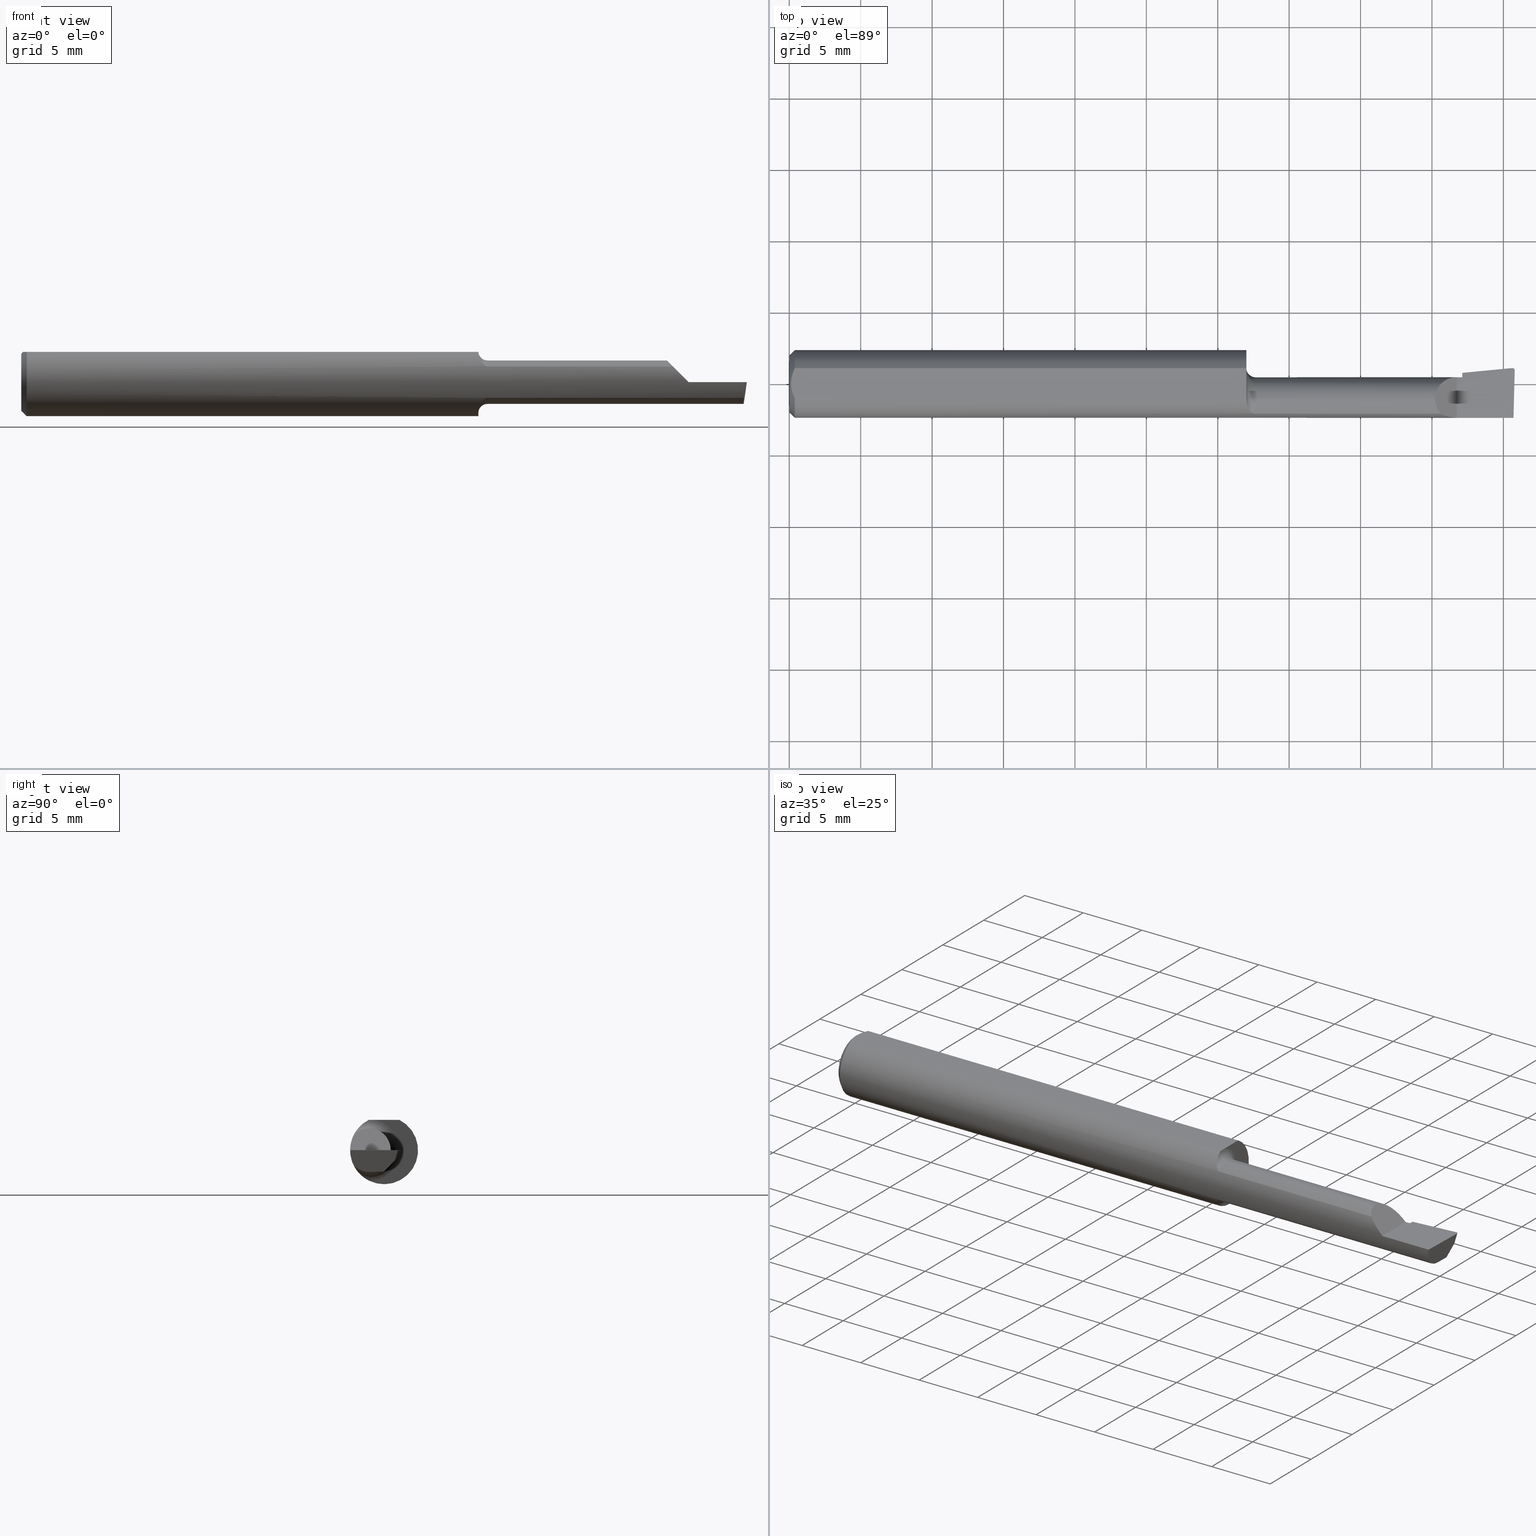
[diagram: canonical four-view strip — front | top / right | iso, engineering-drawing reading convention]
A machine part, canonical four-view strip (front | top / right | iso — engineering-drawing reading convention). The complete STEP part file that produces these views, byte-faithful:
ISO-10303-21;
HEADER;
FILE_DESCRIPTION (( 'STEP AP214' ),
    '1' );
FILE_NAME ('B140700R.STEP',
    '2020-05-08T22:41:05',
    ( '' ),
    ( '' ),
    'SwSTEP 2.0',
    'SolidWorks 2018',
    '' );
FILE_SCHEMA (( 'AUTOMOTIVE_DESIGN' ));
ENDSEC;

DATA;
#1 = FACE_OUTER_BOUND ( 'NONE', #539, .T. ) ;
#2 = ADVANCED_FACE ( 'NONE', ( #37 ), #472, .F. ) ;
#3 = PRODUCT_DEFINITION_SHAPE ( 'NONE', 'NONE',  #544 ) ;
#4 = PLANE ( 'NONE',  #473 ) ;
#5 = VERTEX_POINT ( 'NONE', #66 ) ;
#6 = CARTESIAN_POINT ( 'NONE',  ( 1.990393312970557327, -0.04150000000000000216, -0.05990000000000000185 ) ) ;
#7 = ADVANCED_FACE ( 'NONE', ( #666 ), #100, .F. ) ;
#8 = DIRECTION ( 'NONE',  ( -1.000000000000000000, -0.0000000000000000000, -0.0000000000000000000 ) ) ;
#9 = EDGE_CURVE ( 'NONE', #399, #62, #520, .T. ) ;
#10 = LINE ( 'NONE', #238, #527 ) ;
#11 = CARTESIAN_POINT ( 'NONE',  ( 1.854999999999999982, 0.03043808801135922115, 1.030335937757294514E-15 ) ) ;
#12 = CIRCLE ( 'NONE', #97, 0.07859999999999965625 ) ;
#13 = EDGE_CURVE ( 'NONE', #111, #15, #19, .T. ) ;
#14 = CYLINDRICAL_SURFACE ( 'NONE', #185, 0.09360000000000001652 ) ;
#15 = VERTEX_POINT ( 'NONE', #342 ) ;
#16 = DIRECTION ( 'NONE',  ( -1.000000000000000000, -0.0000000000000000000, -0.0000000000000000000 ) ) ;
#17 = VERTEX_POINT ( 'NONE', #364 ) ;
#18 = DIRECTION ( 'NONE',  ( -1.000000000000000000, -0.0000000000000000000, -0.0000000000000000000 ) ) ;
#19 =( BOUNDED_CURVE ( )  B_SPLINE_CURVE ( 3, ( #313, #507, #203, #131 ),
 .UNSPECIFIED., .F., .T. ) 
 B_SPLINE_CURVE_WITH_KNOTS ( ( 4, 4 ),
 ( 0.8819507499627846636, 1.360746882514781042 ),
 .UNSPECIFIED. ) 
 CURVE ( )  GEOMETRIC_REPRESENTATION_ITEM ( )  RATIONAL_B_SPLINE_CURVE ( ( 1.000000000000000000, 0.9809872534005956712, 0.9809872534005956712, 1.000000000000000000 ) ) 
 REPRESENTATION_ITEM ( '' )  );
#20 = CARTESIAN_POINT ( 'NONE',  ( 1.989982066092358393, -0.05720488466914004644, -0.05989999999999997410 ) ) ;
#21 = ADVANCED_FACE ( 'NONE', ( #142 ), #251, .T. ) ;
#22 = EDGE_LOOP ( 'NONE', ( #84, #262, #147, #125, #519 ) ) ;
#23 = DIRECTION ( 'NONE',  ( 0.0000000000000000000, 1.000000000000000000, 0.0000000000000000000 ) ) ;
#24 = DIRECTION ( 'NONE',  ( -0.02617694830786378504, -0.9996573249755575929, 0.0000000000000000000 ) ) ;
#25 = ORIENTED_EDGE ( 'NONE', *, *, #53, .F. ) ;
#26 = CARTESIAN_POINT ( 'NONE',  ( 1.284999999999999920, -0.04150000000000000216, 0.05989999999999993940 ) ) ;
#27 = CARTESIAN_POINT ( 'NONE',  ( 2.000000000000000000, -0.04150000000000000216, -0.05990000000000000185 ) ) ;
#28 = CARTESIAN_POINT ( 'NONE',  ( 1.854999999999999982, -0.2500000000000000555, 1.135460985248596835E-17 ) ) ;
#29 = MANIFOLD_SOLID_BREP ( '3D38131D-C0BB-4e64-95DB-B8367B4224A6-GAAFaceID14', #659 ) ;
#30 = EDGE_CURVE ( 'NONE', #683, #219, #228, .T. ) ;
#31 = CARTESIAN_POINT ( 'NONE',  ( 0.0000000000000000000, 0.0000000000000000000, 0.0000000000000000000 ) ) ;
#32 =( NAMED_UNIT ( * ) PLANE_ANGLE_UNIT ( ) SI_UNIT ( $, .RADIAN. ) );
#33 = CARTESIAN_POINT ( 'NONE',  ( 1.260121283746728604, -0.04659318327468391085, -0.08137765652544191874 ) ) ;
#34 = CARTESIAN_POINT ( 'NONE',  ( 1.569999999999999840, -0.08307469879518077083, -0.04312255117789288994 ) ) ;
#35 = CARTESIAN_POINT ( 'NONE',  ( 1.260006719116742557, -0.04082489400077272956, -0.08423096411932437522 ) ) ;
#36 = ORIENTED_EDGE ( 'NONE', *, *, #483, .F. ) ;
#37 = FACE_OUTER_BOUND ( 'NONE', #656, .T. ) ;
#38 = VERTEX_POINT ( 'NONE', #11 ) ;
#39 = CARTESIAN_POINT ( 'NONE',  ( 1.854999999999999982, 0.03043808801135671968, 0.0000000000000000000 ) ) ;
#40 = CARTESIAN_POINT ( 'NONE',  ( 1.260000000000000009, -0.04014498638740782166, -0.08455714216888012003 ) ) ;
#41 = DIRECTION ( 'NONE',  ( -0.7071067811865516806, 0.0000000000000000000, 0.7071067811865433539 ) ) ;
#42 = VECTOR ( 'NONE', #718, 39.37007874015748854 ) ;
#43 = EDGE_CURVE ( 'NONE', #667, #683, #132, .T. ) ;
#44 = EDGE_CURVE ( 'NONE', #219, #357, #140, .T. ) ;
#45 = DIRECTION ( 'NONE',  ( -1.000000000000000000, 0.0000000000000000000, -0.0000000000000000000 ) ) ;
#46 = VECTOR ( 'NONE', #204, 39.37007874015748143 ) ;
#47 = VERTEX_POINT ( 'NONE', #429 ) ;
#48 = EDGE_CURVE ( 'NONE', #412, #550, #568, .T. ) ;
#49 = AXIS2_PLACEMENT_3D ( 'NONE', #110, #113, #107 ) ;
#50 = ORIENTED_EDGE ( 'NONE', *, *, #287, .F. ) ;
#51 = CARTESIAN_POINT ( 'NONE',  ( 1.845713589253087594, 0.02954390835936741844, -6.829619984160658046E-17 ) ) ;
#52 = ORIENTED_EDGE ( 'NONE', *, *, #158, .T. ) ;
#53 = EDGE_CURVE ( 'NONE', #399, #38, #121, .T. ) ;
#54 = EDGE_LOOP ( 'NONE', ( #267, #331, #555, #52, #85 ) ) ;
#55 = EDGE_CURVE ( 'NONE', #697, #712, #12, .T. ) ;
#56 = CARTESIAN_POINT ( 'NONE',  ( 0.01499999999999999598, 1.146269404001922775E-17, 0.09360000000000001652 ) ) ;
#57 = ADVANCED_FACE ( 'NONE', ( #160 ), #570, .F. ) ;
#58 = VECTOR ( 'NONE', #719, 39.37007874015748143 ) ;
#59 = FACE_OUTER_BOUND ( 'NONE', #690, .T. ) ;
#60 = DIRECTION ( 'NONE',  ( -1.000000000000000000, -0.0000000000000000000, -0.0000000000000000000 ) ) ;
#61 = AXIS2_PLACEMENT_3D ( 'NONE', #406, #414, #522 ) ;
#62 = VERTEX_POINT ( 'NONE', #74 ) ;
#63 = DIRECTION ( 'NONE',  ( -1.000000000000000000, -0.0000000000000000000, -0.0000000000000000000 ) ) ;
#64 = EDGE_LOOP ( 'NONE', ( #154, #384, #181, #543 ) ) ;
#65 = CARTESIAN_POINT ( 'NONE',  ( 1.260000000000000009, -0.03946024096385555846, -0.08487549341873928954 ) ) ;
#66 = CARTESIAN_POINT ( 'NONE',  ( 1.999806390372779408, 0.03700634663142107761, -6.825079363098308080E-17 ) ) ;
#67 = LENGTH_MEASURE_WITH_UNIT ( LENGTH_MEASURE( 0.02539999999999999897 ), #270 );
#68 = ADVANCED_FACE ( 'NONE', ( #437 ), #689, .T. ) ;
#69 = CARTESIAN_POINT ( 'NONE',  ( 0.0000000000000000000, -0.04149999999999999523, -0.05989999999999997410 ) ) ;
#70 =( BOUNDED_CURVE ( )  B_SPLINE_CURVE ( 3, ( #669, #231, #20, #6 ),
 .UNSPECIFIED., .F., .T. ) 
 B_SPLINE_CURVE_WITH_KNOTS ( ( 4, 4 ),
 ( 5.726109673675772171, 6.493234751459700860 ),
 .UNSPECIFIED. ) 
 CURVE ( )  GEOMETRIC_REPRESENTATION_ITEM ( )  RATIONAL_B_SPLINE_CURVE ( ( 1.000000000000000000, 0.9515582177473689285, 0.9515582177473689285, 1.000000000000000000 ) ) 
 REPRESENTATION_ITEM ( '' )  );
#71 = DIRECTION ( 'NONE',  ( 0.0000000000000000000, -1.189000693621284344E-16, -1.000000000000000000 ) ) ;
#72 = EDGE_LOOP ( 'NONE', ( #489, #650, #615, #410 ) ) ;
#73 = ORIENTED_EDGE ( 'NONE', *, *, #670, .T. ) ;
#74 = CARTESIAN_POINT ( 'NONE',  ( 1.854999999999999982, -0.04150000000000000216, -0.05990000000000000185 ) ) ;
#75 = ORIENTED_EDGE ( 'NONE', *, *, #206, .F. ) ;
#76 = ORIENTED_EDGE ( 'NONE', *, *, #9, .F. ) ;
#77 = DIRECTION ( 'NONE',  ( 0.0000000000000000000, 0.0000000000000000000, -1.000000000000000000 ) ) ;
#78 = ADVANCED_FACE ( 'NONE', ( #517 ), #538, .T. ) ;
#79 = DIRECTION ( 'NONE',  ( -1.000000000000000000, -0.0000000000000000000, -0.0000000000000000000 ) ) ;
#80 =( NAMED_UNIT ( * ) SI_UNIT ( $, .STERADIAN. ) SOLID_ANGLE_UNIT ( ) );
#81 = CARTESIAN_POINT ( 'NONE',  ( 0.0000000000000000000, 0.0000000000000000000, 0.0000000000000000000 ) ) ;
#82 = LINE ( 'NONE', #265, #330 ) ;
#83 = EDGE_CURVE ( 'NONE', #219, #5, #170, .T. ) ;
#84 = ORIENTED_EDGE ( 'NONE', *, *, #532, .F. ) ;
#85 = ORIENTED_EDGE ( 'NONE', *, *, #727, .T. ) ;
#86 = CARTESIAN_POINT ( 'NONE',  ( 0.01499999999999999598, 0.0000000000000000000, 0.0000000000000000000 ) ) ;
#87 = CARTESIAN_POINT ( 'NONE',  ( 2.000000000000000000, -0.2500000000000000555, -6.829619984160658046E-17 ) ) ;
#88 = EDGE_CURVE ( 'NONE', #550, #38, #611, .T. ) ;
#89 =( LENGTH_UNIT ( ) NAMED_UNIT ( * ) SI_UNIT ( $, .METRE. ) );
#90 = DIRECTION ( 'NONE',  ( -0.7071067811865433539, 0.0000000000000000000, -0.7071067811865516806 ) ) ;
#91 = DIRECTION ( 'NONE',  ( 0.7071067811865391350, 0.0000000000000000000, -0.7071067811865558994 ) ) ;
#92 = DIRECTION ( 'NONE',  ( 0.06894566448119619773, -0.7160281025913034503, 0.6946583704589934793 ) ) ;
#93 = AXIS2_PLACEMENT_3D ( 'NONE', #39, #45, #435 ) ;
#94 = CARTESIAN_POINT ( 'NONE',  ( 0.009539353699420832430, -0.02875682547511371895, 0.08360000000000000764 ) ) ;
#95 = EDGE_LOOP ( 'NONE', ( #631, #499, #143, #73, #709, #354, #351, #378, #187, #657, #216, #164, #308 ) ) ;
#96 = VERTEX_POINT ( 'NONE', #257 ) ;
#97 = AXIS2_PLACEMENT_3D ( 'NONE', #636, #63, #586 ) ;
#98 = CARTESIAN_POINT ( 'NONE',  ( 1.988104162047463319, -0.07253870183878463607, -0.07191998023054105293 ) ) ;
#99 = CARTESIAN_POINT ( 'NONE',  ( 1.824917075065774830, -0.09360000000000001652, 0.01508292493422499526 ) ) ;
#100 = PLANE ( 'NONE',  #665 ) ;
#101 = EDGE_CURVE ( 'NONE', #623, #433, #225, .T. ) ;
#102 = CARTESIAN_POINT ( 'NONE',  ( 1.260033822879743859, -0.04150000000000000216, 0.08360000000000000764 ) ) ;
#103 = CARTESIAN_POINT ( 'NONE',  ( 1.260000000000000009, 0.04339999999999993863, 0.0000000000000000000 ) ) ;
#104 = LINE ( 'NONE', #338, #390 ) ;
#105 = AXIS2_PLACEMENT_3D ( 'NONE', #51, #608, #612 ) ;
#106 = CARTESIAN_POINT ( 'NONE',  ( 0.0000000000000000000, -0.04150000000000000216, 0.0000000000000000000 ) ) ;
#107 = DIRECTION ( 'NONE',  ( 0.0000000000000000000, 0.0000000000000000000, -1.000000000000000000 ) ) ;
#108 = LINE ( 'NONE', #27, #695 ) ;
#109 = ORIENTED_EDGE ( 'NONE', *, *, #236, .T. ) ;
#110 = CARTESIAN_POINT ( 'NONE',  ( 1.284999999999999920, -0.04150000000000000216, 0.08489999999999994773 ) ) ;
#111 = VERTEX_POINT ( 'NONE', #591 ) ;
#112 = EDGE_CURVE ( 'NONE', #641, #667, #391, .T. ) ;
#113 = DIRECTION ( 'NONE',  ( 0.0000000000000000000, -1.000000000000000000, 0.0000000000000000000 ) ) ;
#114 = ORIENTED_EDGE ( 'NONE', *, *, #447, .F. ) ;
#115 = CARTESIAN_POINT ( 'NONE',  ( 0.0000000000000000000, -0.04150000000000000216, 0.0000000000000000000 ) ) ;
#116 = DIRECTION ( 'NONE',  ( 0.0000000000000000000, 0.0000000000000000000, 1.000000000000000000 ) ) ;
#117 = ADVANCED_FACE ( 'NONE', ( #1 ), #451, .F. ) ;
#118 = ORIENTED_EDGE ( 'NONE', *, *, #137, .T. ) ;
#119 = CARTESIAN_POINT ( 'NONE',  ( 1.260033822879743415, -0.04159918775988085543, 0.08360000000000000764 ) ) ;
#120 = AXIS2_PLACEMENT_3D ( 'NONE', #86, #205, #421 ) ;
#121 = LINE ( 'NONE', #28, #422 ) ;
#122 = ORIENTED_EDGE ( 'NONE', *, *, #658, .T. ) ;
#123 = ADVANCED_FACE ( 'NONE', ( #59 ), #274, .F. ) ;
#124 = CARTESIAN_POINT ( 'NONE',  ( 1.991446623798936333, -0.001275682303322550441, -0.05990000000000000185 ) ) ;
#125 = ORIENTED_EDGE ( 'NONE', *, *, #101, .T. ) ;
#126 = FACE_OUTER_BOUND ( 'NONE', #463, .T. ) ;
#127 = EDGE_CURVE ( 'NONE', #62, #412, #82, .T. ) ;
#128 = CARTESIAN_POINT ( 'NONE',  ( 1.990393312970557327, -0.04150000000000000216, -0.05990000000000000185 ) ) ;
#129 = DIRECTION ( 'NONE',  ( 0.1240019227989197920, 0.3022330132596642849, 0.9451342385281331637 ) ) ;
#130 = DIRECTION ( 'NONE',  ( -1.000000000000000000, -0.0000000000000000000, -0.0000000000000000000 ) ) ;
#131 = CARTESIAN_POINT ( 'NONE',  ( 1.996386342823452065, -0.09360000000000009979, -6.634435288474567089E-17 ) ) ;
#132 =( BOUNDED_CURVE ( )  B_SPLINE_CURVE ( 3, ( #302, #243, #153, #404 ),
 .UNSPECIFIED., .F., .F. ) 
 B_SPLINE_CURVE_WITH_KNOTS ( ( 4, 4 ),
 ( 3.064097098354582105, 3.156599629463105128 ),
 .UNSPECIFIED. ) 
 CURVE ( )  GEOMETRIC_REPRESENTATION_ITEM ( )  RATIONAL_B_SPLINE_CURVE ( ( 1.000000000000000000, 0.9992870672494019724, 0.9992870672494019724, 1.000000000000000000 ) ) 
 REPRESENTATION_ITEM ( '' )  );
#133 = CARTESIAN_POINT ( 'NONE',  ( 1.269277238843646405, -0.07518688180277831312, 0.05595855205935828386 ) ) ;
#134 = CARTESIAN_POINT ( 'NONE',  ( 1.260020127471513041, -0.04150000000000001604, -0.08389702020930184245 ) ) ;
#135 = AXIS2_PLACEMENT_3D ( 'NONE', #529, #18, #638 ) ;
#136 = CARTESIAN_POINT ( 'NONE',  ( 1.854999999999999982, -0.04150000000000000216, 0.0000000000000000000 ) ) ;
#137 = EDGE_CURVE ( 'NONE', #275, #200, #458, .T. ) ;
#138 = LINE ( 'NONE', #533, #575 ) ;
#139 = VERTEX_POINT ( 'NONE', #261 ) ;
#140 = LINE ( 'NONE', #304, #605 ) ;
#141 = CARTESIAN_POINT ( 'NONE',  ( 1.260033822879743859, -0.04150000000000000216, 0.08360000000000000764 ) ) ;
#142 = FACE_OUTER_BOUND ( 'NONE', #284, .T. ) ;
#143 = ORIENTED_EDGE ( 'NONE', *, *, #178, .T. ) ;
#144 = CARTESIAN_POINT ( 'NONE',  ( 0.0000000000000000000, 0.0000000000000000000, 0.0000000000000000000 ) ) ;
#145 = SURFACE_SIDE_STYLE ('',( #649 ) ) ;
#146 = AXIS2_PLACEMENT_3D ( 'NONE', #571, #60, #561 ) ;
#147 = ORIENTED_EDGE ( 'NONE', *, *, #155, .T. ) ;
#148 =( BOUNDED_CURVE ( )  B_SPLINE_CURVE ( 3, ( #485, #99, #589, #278 ),
 .UNSPECIFIED., .F., .T. ) 
 B_SPLINE_CURVE_WITH_KNOTS ( ( 4, 4 ),
 ( 4.712388980384689674, 5.191185112936686608 ),
 .UNSPECIFIED. ) 
 CURVE ( )  GEOMETRIC_REPRESENTATION_ITEM ( )  RATIONAL_B_SPLINE_CURVE ( ( 1.000000000000000000, 0.9809872534005956712, 0.9809872534005956712, 1.000000000000000000 ) ) 
 REPRESENTATION_ITEM ( '' )  );
#149 = CARTESIAN_POINT ( 'NONE',  ( 1.780099999999999349, -0.04150000000000000216, 0.05989999999999997410 ) ) ;
#150 = EDGE_CURVE ( 'NONE', #285, #356, #479, .T. ) ;
#151 = CARTESIAN_POINT ( 'NONE',  ( 5.659797890829555466E-31, 0.01839999999999995806, 1.030335658007946046E-15 ) ) ;
#152 = CARTESIAN_POINT ( 'NONE',  ( 1.284999999999999920, -0.04149999999999999523, -0.08489999999999994773 ) ) ;
#153 = CARTESIAN_POINT ( 'NONE',  ( 1.990684883739910260, 0.03734591258203676101, -0.02001468779820764210 ) ) ;
#154 = ORIENTED_EDGE ( 'NONE', *, *, #244, .T. ) ;
#155 = EDGE_CURVE ( 'NONE', #17, #623, #295, .T. ) ;
#156 = DIRECTION ( 'NONE',  ( 1.000000000000000000, 0.0000000000000000000, 0.0000000000000000000 ) ) ;
#157 = DIRECTION ( 'NONE',  ( -5.493159289247764363E-16, 0.0000000000000000000, -1.000000000000000000 ) ) ;
#158 = EDGE_CURVE ( 'NONE', #433, #673, #179, .T. ) ;
#159 = CARTESIAN_POINT ( 'NONE',  ( 0.01499999999999999944, -0.04209513035969835587, 0.08360000000000000764 ) ) ;
#160 = FACE_OUTER_BOUND ( 'NONE', #513, .T. ) ;
#161 = EDGE_CURVE ( 'NONE', #285, #482, #280, .T. ) ;
#162 = LINE ( 'NONE', #201, #408 ) ;
#163 = PRODUCT_DEFINITION_CONTEXT ( 'detailed design', #246, 'design' ) ;
#164 = ORIENTED_EDGE ( 'NONE', *, *, #161, .F. ) ;
#165 = AXIS2_PLACEMENT_3D ( 'NONE', #316, #315, #303 ) ;
#166 = EDGE_LOOP ( 'NONE', ( #401, #559, #443 ) ) ;
#167 = DIRECTION ( 'NONE',  ( 1.000000000000000000, 0.0000000000000000000, 0.0000000000000000000 ) ) ;
#168 = EDGE_CURVE ( 'NONE', #588, #616, #528, .T. ) ;
#169 = DIRECTION ( 'NONE',  ( 0.0000000000000000000, 0.0000000000000000000, -1.000000000000000000 ) ) ;
#170 = LINE ( 'NONE', #701, #597 ) ;
#171 = B_SPLINE_CURVE_WITH_KNOTS ( 'NONE', 3,
 ( #546, #269, #531, #476, #474, #703, #469, #432, #471, #428, #33, #708 ),
 .UNSPECIFIED., .F., .F.,
 ( 4, 2, 2, 2, 2, 4 ),
 ( 1.963546462201886498E-07, 0.0002171101490734174422, 0.0004340239435006147282, 0.0008678515323550088124, 0.001301679121209403005, 0.001735506710063797415 ),
 .UNSPECIFIED. ) ;
#172 = ORIENTED_EDGE ( 'NONE', *, *, #55, .T. ) ;
#173 =( GEOMETRIC_REPRESENTATION_CONTEXT ( 3 ) GLOBAL_UNCERTAINTY_ASSIGNED_CONTEXT ( ( #596 ) ) GLOBAL_UNIT_ASSIGNED_CONTEXT ( ( #190, #32, #548 ) ) REPRESENTATION_CONTEXT ( 'NONE', 'WORKASPACE' ) );
#174 = PRESENTATION_LAYER_ASSIGNMENT (  '', '', ( #702 ) ) ;
#175 =( NAMED_UNIT ( * ) PLANE_ANGLE_UNIT ( ) SI_UNIT ( $, .RADIAN. ) );
#176 = ADVANCED_FACE ( 'NONE', ( #707 ), #365, .F. ) ;
#177 = CARTESIAN_POINT ( 'NONE',  ( 1.273723886093772295, -0.07921817987516426018, 0.04991299092638452894 ) ) ;
#178 = EDGE_CURVE ( 'NONE', #15, #240, #688, .T. ) ;
#179 = CIRCLE ( 'NONE', #120, 0.09360000000000001652 ) ;
#180 = FACE_OUTER_BOUND ( 'NONE', #423, .T. ) ;
#181 = ORIENTED_EDGE ( 'NONE', *, *, #193, .T. ) ;
#182 = DIRECTION ( 'NONE',  ( 1.000000000000000000, 0.0000000000000000000, 0.0000000000000000000 ) ) ;
#183 = CARTESIAN_POINT ( 'NONE',  ( 1.260033749376514578, -0.04199594133480308300, 0.08360000000000003539 ) ) ;
#184 = SURFACE_STYLE_USAGE ( .BOTH. , #145 ) ;
#185 = AXIS2_PLACEMENT_3D ( 'NONE', #144, #386, #448 ) ;
#186 = CARTESIAN_POINT ( 'NONE',  ( 1.260661035553280129, -0.05185656404764085042, 0.07811662714540888730 ) ) ;
#187 = ORIENTED_EDGE ( 'NONE', *, *, #101, .F. ) ;
#188 = ORIENTED_EDGE ( 'NONE', *, *, #264, .F. ) ;
#189 = EDGE_CURVE ( 'NONE', #697, #433, #334, .T. ) ;
#190 =( CONVERSION_BASED_UNIT ( 'INCH', #660 ) LENGTH_UNIT ( ) NAMED_UNIT ( #634 ) );
#191 = EDGE_CURVE ( 'NONE', #200, #681, #221, .T. ) ;
#192 = CARTESIAN_POINT ( 'NONE',  ( 1.260000000000000009, -0.04150000000000000216, 0.0000000000000000000 ) ) ;
#193 = EDGE_CURVE ( 'NONE', #409, #62, #108, .T. ) ;
#194 = CARTESIAN_POINT ( 'NONE',  ( 2.000000000000000000, 0.1436000000000000332, 0.08359999999999999376 ) ) ;
#195 = CARTESIAN_POINT ( 'NONE',  ( 1.996607907276939153, 0.03291612433050061098, -0.02516861643763549858 ) ) ;
#196 = VECTOR ( 'NONE', #293, 39.37007874015748143 ) ;
#197 = ORIENTED_EDGE ( 'NONE', *, *, #727, .F. ) ;
#198 = LENGTH_MEASURE_WITH_UNIT ( LENGTH_MEASURE( 0.02539999999999999897 ), #89 );
#199 = DIRECTION ( 'NONE',  ( -1.000000000000000000, -0.0000000000000000000, -0.0000000000000000000 ) ) ;
#200 = VERTEX_POINT ( 'NONE', #654 ) ;
#201 = CARTESIAN_POINT ( 'NONE',  ( 0.0000000000000000000, -0.04150000000000000216, 0.05989999999999997410 ) ) ;
#202 = AXIS2_PLACEMENT_3D ( 'NONE', #241, #247, #254 ) ;
#203 = CARTESIAN_POINT ( 'NONE',  ( 1.994533757673610408, -0.09360000000000001652, -0.01508292493422509067 ) ) ;
#204 = DIRECTION ( 'NONE',  ( -0.0000000000000000000, 1.000000000000000000, -0.0000000000000000000 ) ) ;
#205 = DIRECTION ( 'NONE',  ( -1.000000000000000000, -0.0000000000000000000, -0.0000000000000000000 ) ) ;
#206 = EDGE_CURVE ( 'NONE', #38, #641, #396, .T. ) ;
#207 = EDGE_CURVE ( 'NONE', #139, #285, #171, .T. ) ;
#208 = CARTESIAN_POINT ( 'NONE',  ( 5.659797890829555466E-31, -0.09359999999999998876, 1.030335658007946046E-15 ) ) ;
#209 = DIRECTION ( 'NONE',  ( -1.000000000000000000, -0.0000000000000000000, -0.0000000000000000000 ) ) ;
#210 = CARTESIAN_POINT ( 'NONE',  ( 1.785977184218891400, -0.07176861043311237587, 0.05402281578110738197 ) ) ;
#211 = ORIENTED_EDGE ( 'NONE', *, *, #112, .F. ) ;
#212 = AXIS2_PLACEMENT_3D ( 'NONE', #598, #90, #41 ) ;
#213 = CARTESIAN_POINT ( 'NONE',  ( 0.005000000000000223883, 0.007308422719211823959, 0.08360000000000000764 ) ) ;
#214 = MECHANICAL_DESIGN_GEOMETRIC_PRESENTATION_REPRESENTATION (  '', ( #702 ), #255 ) ;
#215 = CARTESIAN_POINT ( 'NONE',  ( 0.01499999999999999598, 0.0000000000000000000, -0.09360000000000001652 ) ) ;
#216 = ORIENTED_EDGE ( 'NONE', *, *, #326, .F. ) ;
#217 = ORIENTED_EDGE ( 'NONE', *, *, #339, .F. ) ;
#218 = EDGE_CURVE ( 'NONE', #47, #683, #138, .T. ) ;
#219 = VERTEX_POINT ( 'NONE', #556 ) ;
#220 = DIRECTION ( 'NONE',  ( 0.0000000000000000000, 0.0000000000000000000, 1.000000000000000000 ) ) ;
#221 =( BOUNDED_CURVE ( )  B_SPLINE_CURVE ( 3, ( #355, #700, #651, #646 ),
 .UNSPECIFIED., .F., .T. ) 
 B_SPLINE_CURVE_WITH_KNOTS ( ( 4, 4 ),
 ( 0.0000000000000000000, 1.570796326794896558 ),
 .UNSPECIFIED. ) 
 CURVE ( )  GEOMETRIC_REPRESENTATION_ITEM ( )  RATIONAL_B_SPLINE_CURVE ( ( 1.000000000000000000, 0.8047378541243649375, 0.8047378541243649375, 1.000000000000000000 ) ) 
 REPRESENTATION_ITEM ( '' )  );
#222 = LINE ( 'NONE', #566, #416 ) ;
#223 = VECTOR ( 'NONE', #260, 39.37007874015748143 ) ;
#224 = APPLICATION_PROTOCOL_DEFINITION ( 'draft international standard', 'automotive_design', 1998, #246 ) ;
#225 = CIRCLE ( 'NONE', #457, 0.09360000000000001652 ) ;
#226 = AXIS2_PLACEMENT_3D ( 'NONE', #115, #16, #327 ) ;
#227 = ORIENTED_EDGE ( 'NONE', *, *, #88, .F. ) ;
#228 =( BOUNDED_CURVE ( )  B_SPLINE_CURVE ( 3, ( #309, #696, #195, #359 ),
 .UNSPECIFIED., .F., .T. ) 
 B_SPLINE_CURVE_WITH_KNOTS ( ( 4, 4 ),
 ( 3.156599629463105128, 4.715023529952367731 ),
 .UNSPECIFIED. ) 
 CURVE ( )  GEOMETRIC_REPRESENTATION_ITEM ( )  RATIONAL_B_SPLINE_CURVE ( ( 1.000000000000000000, 0.8076450242550399228, 0.8076450242550399228, 1.000000000000000000 ) ) 
 REPRESENTATION_ITEM ( '' )  );
#229 = EDGE_CURVE ( 'NONE', #357, #409, #720, .T. ) ;
#230 = ORIENTED_EDGE ( 'NONE', *, *, #207, .T. ) ;
#231 = CARTESIAN_POINT ( 'NONE',  ( 1.990322576363892759, -0.07176861043311236199, -0.05402281578110740973 ) ) ;
#232 = ORIENTED_EDGE ( 'NONE', *, *, #461, .F. ) ;
#233 = EDGE_LOOP ( 'NONE', ( #613, #542, #76, #547, #227 ) ) ;
#234 = CARTESIAN_POINT ( 'NONE',  ( 1.992906680581892465, 0.04371699102466924253, -6.439972649628884200E-17 ) ) ;
#235 = CARTESIAN_POINT ( 'NONE',  ( 1.796877448822106649, -0.08307469879518082634, 0.04312255117789281361 ) ) ;
#236 = EDGE_CURVE ( 'NONE', #356, #139, #324, .T. ) ;
#237 = AXIS2_PLACEMENT_3D ( 'NONE', #361, #358, #273 ) ;
#238 = CARTESIAN_POINT ( 'NONE',  ( 1.996083844369372917, -0.0008291687483132151315, -0.05990000000000000185 ) ) ;
#239 = CIRCLE ( 'NONE', #333, 0.05989999999999993940 ) ;
#240 = VERTEX_POINT ( 'NONE', #515 ) ;
#241 = CARTESIAN_POINT ( 'NONE',  ( 1.284999999999999920, -0.04150000000000000216, 0.0000000000000000000 ) ) ;
#242 = EDGE_CURVE ( 'NONE', #588, #275, #317, .T. ) ;
#243 = CARTESIAN_POINT ( 'NONE',  ( 1.990484603334409908, 0.03734087721588539438, -0.01999999999999999001 ) ) ;
#244 = EDGE_CURVE ( 'NONE', #412, #357, #10, .T. ) ;
#245 = ORIENTED_EDGE ( 'NONE', *, *, #150, .F. ) ;
#246 = APPLICATION_CONTEXT ( 'automotive_design' ) ;
#247 = DIRECTION ( 'NONE',  ( -1.000000000000000000, -0.0000000000000000000, -0.0000000000000000000 ) ) ;
#248 = DIRECTION ( 'NONE',  ( 0.0000000000000000000, 0.9524855432518773979, -0.3045837978228257970 ) ) ;
#249 = ORIENTED_EDGE ( 'NONE', *, *, #218, .F. ) ;
#250 = ORIENTED_EDGE ( 'NONE', *, *, #30, .T. ) ;
#251 = CYLINDRICAL_SURFACE ( 'NONE', #135, 0.05989999999999997410 ) ;
#252 = ORIENTED_EDGE ( 'NONE', *, *, #268, .F. ) ;
#253 = B_SPLINE_CURVE_WITH_KNOTS ( 'NONE', 3,
 ( #159, #424, #94, #655, #606, #602 ),
 .UNSPECIFIED., .F., .F.,
 ( 4, 2, 4 ),
 ( 0.005785415439423114564, 0.006333348270144337384, 0.006881281100865560205 ),
 .UNSPECIFIED. ) ;
#254 = DIRECTION ( 'NONE',  ( 0.0000000000000000000, 0.0000000000000000000, 1.000000000000000000 ) ) ;
#255 =( GEOMETRIC_REPRESENTATION_CONTEXT ( 3 ) GLOBAL_UNCERTAINTY_ASSIGNED_CONTEXT ( ( #717 ) ) GLOBAL_UNIT_ASSIGNED_CONTEXT ( ( #297, #465, #80 ) ) REPRESENTATION_CONTEXT ( 'NONE', 'WORKASPACE' ) );
#256 = DIRECTION ( 'NONE',  ( 0.0000000000000000000, 0.0000000000000000000, 1.000000000000000000 ) ) ;
#257 = CARTESIAN_POINT ( 'NONE',  ( 1.260000000000000009, -0.02669966216601840289, 0.08360000000000000764 ) ) ;
#258 = CARTESIAN_POINT ( 'NONE',  ( 1.569999999999999840, -0.08307469879518077083, 0.04312255117789288994 ) ) ;
#259 = CARTESIAN_POINT ( 'NONE',  ( 1.284999999999999920, -0.08307469879518036837, 0.04312255117789322995 ) ) ;
#260 = DIRECTION ( 'NONE',  ( -1.000000000000000000, -0.0000000000000000000, -0.0000000000000000000 ) ) ;
#261 = CARTESIAN_POINT ( 'NONE',  ( 1.284999999999999920, -0.08307469879518065980, -0.04312255117789294545 ) ) ;
#262 = ORIENTED_EDGE ( 'NONE', *, *, #438, .T. ) ;
#263 = CARTESIAN_POINT ( 'NONE',  ( 1.780099999999999127, -0.05720488466914008113, 0.05989999999999996022 ) ) ;
#264 = EDGE_CURVE ( 'NONE', #240, #681, #625, .T. ) ;
#265 = CARTESIAN_POINT ( 'NONE',  ( 1.854999999999999982, -0.04150000000000000216, -0.05990000000000000185 ) ) ;
#266 = DIRECTION ( 'NONE',  ( -0.0000000000000000000, 0.0000000000000000000, 1.000000000000000000 ) ) ;
#267 = ORIENTED_EDGE ( 'NONE', *, *, #438, .F. ) ;
#268 = EDGE_CURVE ( 'NONE', #111, #409, #70, .T. ) ;
#269 = CARTESIAN_POINT ( 'NONE',  ( 1.282100790213033914, -0.08307469879518072919, -0.04312255117789300096 ) ) ;
#270 =( LENGTH_UNIT ( ) NAMED_UNIT ( * ) SI_UNIT ( $, .METRE. ) );
#271 = CARTESIAN_POINT ( 'NONE',  ( 1.990883086864199569, 0.03733652896197538207, -0.02004403198038583189 ) ) ;
#272 = EDGE_LOOP ( 'NONE', ( #502, #319, #725, #557, #567, #609 ) ) ;
#273 = DIRECTION ( 'NONE',  ( 0.0000000000000000000, 0.0000000000000000000, 1.000000000000000000 ) ) ;
#274 = TOROIDAL_SURFACE ( 'NONE', #722, 0.08489999999999994773, 0.02499999999999993894 ) ;
#275 = VERTEX_POINT ( 'NONE', #235 ) ;
#276 = EDGE_LOOP ( 'NONE', ( #114, #36, #232, #560, #197, #581, #498 ) ) ;
#277 = EDGE_CURVE ( 'NONE', #200, #616, #162, .T. ) ;
#278 = CARTESIAN_POINT ( 'NONE',  ( 1.796877448822106649, -0.08307469879518082634, 0.04312255117789281361 ) ) ;
#279 = SURFACE_STYLE_USAGE ( .BOTH. , #281 ) ;
#280 = B_SPLINE_CURVE_WITH_KNOTS ( 'NONE', 3,
 ( #418, #35, #40, #415 ),
 .UNSPECIFIED., .F., .F.,
 ( 4, 4 ),
 ( 0.001735506710063797415, 0.001793010945052100642 ),
 .UNSPECIFIED. ) ;
#281 = SURFACE_SIDE_STYLE ('',( #537 ) ) ;
#282 = STYLED_ITEM ( 'NONE', ( #387 ), #617 ) ;
#283 = FILL_AREA_STYLE ('',( #290 ) ) ;
#284 = EDGE_LOOP ( 'NONE', ( #118, #686, #348, #436 ) ) ;
#285 = VERTEX_POINT ( 'NONE', #134 ) ;
#286 = ORIENTED_EDGE ( 'NONE', *, *, #680, .F. ) ;
#287 = EDGE_CURVE ( 'NONE', #5, #47, #430, .T. ) ;
#288 = FACE_OUTER_BOUND ( 'NONE', #166, .T. ) ;
#289 = AXIS2_PLACEMENT_3D ( 'NONE', #341, #664, #332 ) ;
#290 = FILL_AREA_STYLE_COLOUR ( '', #340 ) ;
#291 = ORIENTED_EDGE ( 'NONE', *, *, #44, .T. ) ;
#292 = DIRECTION ( 'NONE',  ( 0.0000000000000000000, 1.000000000000000000, 0.0000000000000000000 ) ) ;
#293 = DIRECTION ( 'NONE',  ( 1.000000000000000000, 0.0000000000000000000, 0.0000000000000000000 ) ) ;
#294 = EDGE_CURVE ( 'NONE', #616, #356, #239, .T. ) ;
#295 = B_SPLINE_CURVE_WITH_KNOTS ( 'NONE', 3,
 ( #312, #213, #373, #600, #642, #541 ),
 .UNSPECIFIED., .F., .F.,
 ( 4, 2, 4 ),
 ( 0.006881281100865560205, 0.007427683811376459971, 0.007974086521887359738 ),
 .UNSPECIFIED. ) ;
#296 = DIRECTION ( 'NONE',  ( 0.9953961983671800740, 0.09584575252021028391, 0.0000000000000000000 ) ) ;
#297 =( CONVERSION_BASED_UNIT ( 'INCH', #198 ) LENGTH_UNIT ( ) NAMED_UNIT ( #524 ) );
#298 = LINE ( 'NONE', #151, #663 ) ;
#299 = VECTOR ( 'NONE', #516, 39.37007874015748854 ) ;
#300 = CARTESIAN_POINT ( 'NONE',  ( 1.840000000000000080, -0.2500000000000000555, 1.959434878635762025E-17 ) ) ;
#301 = CARTESIAN_POINT ( 'NONE',  ( 1.260033712670299622, -0.04209513036081732190, 0.08360000000000000764 ) ) ;
#302 = CARTESIAN_POINT ( 'NONE',  ( 1.990282674007080033, 0.03732143363315360007, -0.02000000000000000042 ) ) ;
#303 = DIRECTION ( 'NONE',  ( 0.0000000000000000000, 0.0000000000000000000, 1.000000000000000000 ) ) ;
#304 = CARTESIAN_POINT ( 'NONE',  ( 1.994631740690216315, 0.01982467021885814251, -0.03846666526582365880 ) ) ;
#305 = ADVANCED_FACE ( 'NONE', ( #558 ), #388, .F. ) ;
#306 = DIRECTION ( 'NONE',  ( -1.000000000000000000, -0.0000000000000000000, -0.0000000000000000000 ) ) ;
#307 = ORIENTED_EDGE ( 'NONE', *, *, #83, .T. ) ;
#308 = ORIENTED_EDGE ( 'NONE', *, *, #207, .F. ) ;
#309 = CARTESIAN_POINT ( 'NONE',  ( 1.990883086864199569, 0.03733652896197538207, -0.02004403198038583189 ) ) ;
#310 = EDGE_CURVE ( 'NONE', #96, #482, #506, .T. ) ;
#311 = APPLICATION_CONTEXT ( 'automotive_design' ) ;
#312 = CARTESIAN_POINT ( 'NONE',  ( 0.005000000000000236026, 1.025183009042025117E-17, 0.08360000000000000764 ) ) ;
#313 = CARTESIAN_POINT ( 'NONE',  ( 1.991365359011875169, -0.08307469879518077083, -0.04312255117789288994 ) ) ;
#314 = PRESENTATION_LAYER_ASSIGNMENT (  '', '', ( #282 ) ) ;
#315 = DIRECTION ( 'NONE',  ( -1.000000000000000000, -0.0000000000000000000, -0.0000000000000000000 ) ) ;
#316 = CARTESIAN_POINT ( 'NONE',  ( 1.284999999999999920, -0.04150000000000000216, 0.0000000000000000000 ) ) ;
#317 = LINE ( 'NONE', #258, #196 ) ;
#318 = VECTOR ( 'NONE', #402, 39.37007874015748854 ) ;
#319 = ORIENTED_EDGE ( 'NONE', *, *, #475, .T. ) ;
#320 = FACE_OUTER_BOUND ( 'NONE', #272, .T. ) ;
#321 = CARTESIAN_POINT ( 'NONE',  ( 0.0000000000000000000, 0.0000000000000000000, -0.07859999999999965625 ) ) ;
#322 = ORIENTED_EDGE ( 'NONE', *, *, #244, .F. ) ;
#323 = APPLICATION_PROTOCOL_DEFINITION ( 'draft international standard', 'automotive_design', 1998, #311 ) ;
#324 = CIRCLE ( 'NONE', #202, 0.05989999999999993940 ) ;
#325 = CARTESIAN_POINT ( 'NONE',  ( 1.260033712670299622, -0.04209513036081732190, 0.08360000000000000764 ) ) ;
#326 = EDGE_CURVE ( 'NONE', #482, #518, #599, .T. ) ;
#327 = DIRECTION ( 'NONE',  ( 0.0000000000000000000, 0.0000000000000000000, 1.000000000000000000 ) ) ;
#328 = VECTOR ( 'NONE', #209, 39.37007874015748143 ) ;
#329 = CARTESIAN_POINT ( 'NONE',  ( 1.840000000000000080, 0.01839999999999989908, 1.959434878635762025E-17 ) ) ;
#330 = VECTOR ( 'NONE', #23, 39.37007874015748143 ) ;
#331 = ORIENTED_EDGE ( 'NONE', *, *, #55, .F. ) ;
#332 = DIRECTION ( 'NONE',  ( 0.0000000000000000000, 0.0000000000000000000, 1.000000000000000000 ) ) ;
#333 = AXIS2_PLACEMENT_3D ( 'NONE', #691, #8, #116 ) ;
#334 = LINE ( 'NONE', #215, #484 ) ;
#335 = CARTESIAN_POINT ( 'NONE',  ( 1.260010473476444126, -0.03163306423249842569, 0.08360000000000000764 ) ) ;
#336 = CARTESIAN_POINT ( 'NONE',  ( 1.997312560284823402, 0.04374616680637225669, -7.052611464845214313E-17 ) ) ;
#337 = DIRECTION ( 'NONE',  ( -1.000000000000000000, -0.0000000000000000000, -0.0000000000000000000 ) ) ;
#338 = CARTESIAN_POINT ( 'NONE',  ( 0.0000000000000000000, -0.04209513035969835587, 0.08360000000000000764 ) ) ;
#339 = EDGE_CURVE ( 'NONE', #47, #641, #572, .T. ) ;
#340 = COLOUR_RGB ( '',0.5019607843137254832, 0.5019607843137254832, 0.5019607843137254832 ) ;
#341 = CARTESIAN_POINT ( 'NONE',  ( 0.0000000000000000000, 0.0000000000000000000, 0.0000000000000000000 ) ) ;
#342 = CARTESIAN_POINT ( 'NONE',  ( 1.996386342823452065, -0.09360000000000009979, -6.634435288474567089E-17 ) ) ;
#343 = MECHANICAL_DESIGN_GEOMETRIC_PRESENTATION_REPRESENTATION (  '', ( #282 ), #382 ) ;
#344 = FACE_OUTER_BOUND ( 'NONE', #233, .T. ) ;
#345 = CARTESIAN_POINT ( 'NONE',  ( 1.992296147241039872, -0.2497982675158734178, -6.406435080701882457E-17 ) ) ;
#346 = DIRECTION ( 'NONE',  ( 0.1219104985252700973, 0.0000000000000000000, 0.9925410975618692566 ) ) ;
#347 = ORIENTED_EDGE ( 'NONE', *, *, #150, .T. ) ;
#348 = ORIENTED_EDGE ( 'NONE', *, *, #168, .F. ) ;
#349 = ORIENTED_EDGE ( 'NONE', *, *, #339, .T. ) ;
#350 = CARTESIAN_POINT ( 'NONE',  ( 1.260000000000000009, -0.02669966216601840289, 0.08360000000000000764 ) ) ;
#351 = ORIENTED_EDGE ( 'NONE', *, *, #420, .T. ) ;
#352 = FILL_AREA_STYLE ('',( #594 ) ) ;
#353 = CARTESIAN_POINT ( 'NONE',  ( 1.854999999999999982, 0.02429519371539584291, -0.02000000000000000042 ) ) ;
#354 = ORIENTED_EDGE ( 'NONE', *, *, #400, .F. ) ;
#355 = CARTESIAN_POINT ( 'NONE',  ( 1.780099999999999349, -0.04150000000000000216, 0.05989999999999997410 ) ) ;
#356 = VERTEX_POINT ( 'NONE', #630 ) ;
#357 = VERTEX_POINT ( 'NONE', #124 ) ;
#358 = DIRECTION ( 'NONE',  ( -1.000000000000000000, -0.0000000000000000000, -0.0000000000000000000 ) ) ;
#359 = CARTESIAN_POINT ( 'NONE',  ( 1.995722974169268138, 0.02705373335153002032, -0.03112352112763099726 ) ) ;
#360 = CARTESIAN_POINT ( 'NONE',  ( 1.990282674007080033, 0.03732143363315360007, -0.02000000000000000042 ) ) ;
#361 = CARTESIAN_POINT ( 'NONE',  ( 1.284999999999999920, -0.04150000000000000216, 0.0000000000000000000 ) ) ;
#362 = EDGE_CURVE ( 'NONE', #550, #667, #441, .T. ) ;
#363 = DIRECTION ( 'NONE',  ( 0.0000000000000000000, 0.0000000000000000000, 1.000000000000000000 ) ) ;
#364 = CARTESIAN_POINT ( 'NONE',  ( 0.005000000000000236026, 1.025183009042025117E-17, 0.08360000000000000764 ) ) ;
#365 = TOROIDAL_SURFACE ( 'NONE', #237, 0.08489999999999994773, 0.02499999999999993894 ) ;
#366 = ORIENTED_EDGE ( 'NONE', *, *, #43, .T. ) ;
#367 = ORIENTED_EDGE ( 'NONE', *, *, #191, .F. ) ;
#368 = DIRECTION ( 'NONE',  ( 0.0000000000000000000, 0.9524855432518773979, -0.3045837978228257970 ) ) ;
#369 = ORIENTED_EDGE ( 'NONE', *, *, #670, .F. ) ;
#370 = CARTESIAN_POINT ( 'NONE',  ( 0.01499999999999999598, 0.04209513035969837669, 0.08360000000000000764 ) ) ;
#371 = DIRECTION ( 'NONE',  ( -1.000000000000000000, -0.0000000000000000000, -0.0000000000000000000 ) ) ;
#372 = CARTESIAN_POINT ( 'NONE',  ( 1.284999999999999920, -0.08307469879518036837, 0.04312255117789322995 ) ) ;
#373 = CARTESIAN_POINT ( 'NONE',  ( 0.005981829149300850468, 0.01454044632356567279, 0.08360000000000000764 ) ) ;
#374 = DIRECTION ( 'NONE',  ( 1.000000000000000000, 0.0000000000000000000, 0.0000000000000000000 ) ) ;
#375 = ORIENTED_EDGE ( 'NONE', *, *, #161, .T. ) ;
#376 = VECTOR ( 'NONE', #477, 39.37007874015748854 ) ;
#377 = CARTESIAN_POINT ( 'NONE',  ( 0.01499999999999999598, 0.0000000000000000000, 0.0000000000000000000 ) ) ;
#378 = ORIENTED_EDGE ( 'NONE', *, *, #158, .F. ) ;
#379 = VECTOR ( 'NONE', #585, 39.37007874015748143 ) ;
#380 = SHAPE_DEFINITION_REPRESENTATION ( #3, #617 ) ;
#381 = ORIENTED_EDGE ( 'NONE', *, *, #30, .F. ) ;
#382 =( GEOMETRIC_REPRESENTATION_CONTEXT ( 3 ) GLOBAL_UNCERTAINTY_ASSIGNED_CONTEXT ( ( #647 ) ) GLOBAL_UNIT_ASSIGNED_CONTEXT ( ( #495, #175, #431 ) ) REPRESENTATION_CONTEXT ( 'NONE', 'WORKASPACE' ) );
#383 = ADVANCED_FACE ( 'NONE', ( #180 ), #403, .F. ) ;
#384 = ORIENTED_EDGE ( 'NONE', *, *, #229, .T. ) ;
#385 = PRODUCT_CONTEXT ( 'NONE', #311, 'mechanical' ) ;
#386 = DIRECTION ( 'NONE',  ( -1.000000000000000000, -0.0000000000000000000, -0.0000000000000000000 ) ) ;
#387 = PRESENTATION_STYLE_ASSIGNMENT (( #279 ) ) ;
#388 = PLANE ( 'NONE',  #604 ) ;
#389 = ORIENTED_EDGE ( 'NONE', *, *, #362, .F. ) ;
#390 = VECTOR ( 'NONE', #130, 39.37007874015748143 ) ;
#391 = LINE ( 'NONE', #652, #470 ) ;
#392 = CARTESIAN_POINT ( 'NONE',  ( 1.993310817358676212, 0.04374616680637216648, -6.832789351565719796E-17 ) ) ;
#393 = CONICAL_SURFACE ( 'NONE', #512, 0.09360000000000001652, 0.7853981633974601584 ) ;
#394 = CARTESIAN_POINT ( 'NONE',  ( 1.854999999999999982, -0.01441399783868785485, -0.05990000000000000185 ) ) ;
#395 = ADVANCED_FACE ( 'NONE', ( #549 ), #14, .T. ) ;
#396 = LINE ( 'NONE', #699, #379 ) ;
#397 = DIRECTION ( 'NONE',  ( 0.0000000000000000000, 0.0000000000000000000, -1.000000000000000000 ) ) ;
#398 = DIRECTION ( 'NONE',  ( -0.9922060308645496152, 0.02598182930468405372, 0.1218693434051347224 ) ) ;
#399 = VERTEX_POINT ( 'NONE', #454 ) ;
#400 = EDGE_CURVE ( 'NONE', #554, #588, #488, .T. ) ;
#401 = ORIENTED_EDGE ( 'NONE', *, *, #326, .T. ) ;
#402 = DIRECTION ( 'NONE',  ( 0.9953961983671800740, 0.09584575252021028391, -0.0000000000000000000 ) ) ;
#403 = PLANE ( 'NONE',  #105 ) ;
#404 = CARTESIAN_POINT ( 'NONE',  ( 1.990883086864199569, 0.03733652896197538207, -0.02004403198038583189 ) ) ;
#405 = EDGE_LOOP ( 'NONE', ( #245, #375, #629, #455, #486, #706 ) ) ;
#406 = CARTESIAN_POINT ( 'NONE',  ( 0.01499999999999999598, 0.0000000000000000000, 0.0000000000000000000 ) ) ;
#407 = ORIENTED_EDGE ( 'NONE', *, *, #535, .F. ) ;
#408 = VECTOR ( 'NONE', #509, 39.37007874015748143 ) ;
#409 = VERTEX_POINT ( 'NONE', #128 ) ;
#410 = ORIENTED_EDGE ( 'NONE', *, *, #168, .T. ) ;
#411 = ORIENTED_EDGE ( 'NONE', *, *, #218, .T. ) ;
#412 = VERTEX_POINT ( 'NONE', #394 ) ;
#413 = ADVANCED_FACE ( 'NONE', ( #487 ), #553, .T. ) ;
#414 = DIRECTION ( 'NONE',  ( 1.000000000000000000, 0.0000000000000000000, 0.0000000000000000000 ) ) ;
#415 = CARTESIAN_POINT ( 'NONE',  ( 1.260000000000000009, -0.03946024096385555846, -0.08487549341873928954 ) ) ;
#416 = VECTOR ( 'NONE', #682, 39.37007874015748143 ) ;
#417 = ORIENTED_EDGE ( 'NONE', *, *, #229, .F. ) ;
#418 = CARTESIAN_POINT ( 'NONE',  ( 1.260020127471513041, -0.04150000000000001604, -0.08389702020930184245 ) ) ;
#419 = CARTESIAN_POINT ( 'NONE',  ( 1.990707973439665102, 0.03071856456557518072, -0.01939893992992993560 ) ) ;
#420 = EDGE_CURVE ( 'NONE', #554, #673, #104, .T. ) ;
#421 = DIRECTION ( 'NONE',  ( 0.0000000000000000000, 0.0000000000000000000, 1.000000000000000000 ) ) ;
#422 = VECTOR ( 'NONE', #292, 39.37007874015748143 ) ;
#423 = EDGE_LOOP ( 'NONE', ( #508, #425, #389, #576 ) ) ;
#424 = CARTESIAN_POINT ( 'NONE',  ( 0.01206089165507025739, -0.03555991978469312531, 0.08360000000000000764 ) ) ;
#425 = ORIENTED_EDGE ( 'NONE', *, *, #112, .T. ) ;
#426 = CARTESIAN_POINT ( 'NONE',  ( 1.990399895785905926, -0.04124861242399380928, -0.05990000000000000185 ) ) ;
#427 = ORIENTED_EDGE ( 'NONE', *, *, #362, .T. ) ;
#428 = CARTESIAN_POINT ( 'NONE',  ( 1.260604804002112278, -0.05145819953596710017, -0.07838465384289880489 ) ) ;
#429 = CARTESIAN_POINT ( 'NONE',  ( 1.993512870449313912, 0.04374616680637216648, -7.256471233170699482E-17 ) ) ;
#430 =( BOUNDED_CURVE ( )  B_SPLINE_CURVE ( 3, ( #671, #462, #336, #624 ),
 .UNSPECIFIED., .F., .F. ) 
 B_SPLINE_CURVE_WITH_KNOTS ( ( 4, 4 ),
 ( 1.953092279228458406, 3.511516179717707686 ),
 .UNSPECIFIED. ) 
 CURVE ( )  GEOMETRIC_REPRESENTATION_ITEM ( )  RATIONAL_B_SPLINE_CURVE ( ( 1.000000000000000000, 0.8076450242550430314, 0.8076450242550430314, 1.000000000000000000 ) ) 
 REPRESENTATION_ITEM ( '' )  );
#431 =( NAMED_UNIT ( * ) SI_UNIT ( $, .STERADIAN. ) SOLID_ANGLE_UNIT ( ) );
#432 = CARTESIAN_POINT ( 'NONE',  ( 1.263605992736884120, -0.06448586599545319542, -0.06805619079784645808 ) ) ;
#433 = VERTEX_POINT ( 'NONE', #621 ) ;
#434 = LINE ( 'NONE', #726, #58 ) ;
#435 = DIRECTION ( 'NONE',  ( -0.0000000000000000000, 0.0000000000000000000, 1.000000000000000000 ) ) ;
#436 = ORIENTED_EDGE ( 'NONE', *, *, #242, .T. ) ;
#437 = FACE_OUTER_BOUND ( 'NONE', #620, .T. ) ;
#438 = EDGE_CURVE ( 'NONE', #712, #17, #481, .T. ) ;
#439 = CARTESIAN_POINT ( 'NONE',  ( 1.260000000000000009, -0.02916612216505928140, 0.08360000000000000764 ) ) ;
#440 = FACE_OUTER_BOUND ( 'NONE', #648, .T. ) ;
#441 = LINE ( 'NONE', #729, #318 ) ;
#442 = CARTESIAN_POINT ( 'NONE',  ( 1.260027419345087329, -0.03656676420729539079, 0.08359999999999997988 ) ) ;
#443 = ORIENTED_EDGE ( 'NONE', *, *, #310, .T. ) ;
#444 = ORIENTED_EDGE ( 'NONE', *, *, #532, .T. ) ;
#445 = ADVANCED_FACE ( 'NONE', ( #493 ), #592, .F. ) ;
#446 = CARTESIAN_POINT ( 'NONE',  ( 1.262429122971395090, -0.06066239981301106005, 0.07149394324226567010 ) ) ;
#447 = EDGE_CURVE ( 'NONE', #96, #552, #526, .T. ) ;
#448 = DIRECTION ( 'NONE',  ( 0.0000000000000000000, 0.0000000000000000000, 1.000000000000000000 ) ) ;
#449 = DIRECTION ( 'NONE',  ( 0.0000000000000000000, -0.6963153109074925462, -0.7177360153954946975 ) ) ;
#450 = CARTESIAN_POINT ( 'NONE',  ( 1.260033712670299622, -0.04209513036081732190, 0.08360000000000000764 ) ) ;
#451 = PLANE ( 'NONE',  #685 ) ;
#452 = CARTESIAN_POINT ( 'NONE',  ( 1.993512870449313912, 0.04374616680637216648, -7.256471233170699482E-17 ) ) ;
#453 = CARTESIAN_POINT ( 'NONE',  ( 1.854999999999999982, 0.03726901833842542755, -0.006627062419125365027 ) ) ;
#454 = CARTESIAN_POINT ( 'NONE',  ( 1.854999999999999982, 0.01839999999999999969, 1.030335658007946637E-15 ) ) ;
#455 = ORIENTED_EDGE ( 'NONE', *, *, #447, .T. ) ;
#456 = CARTESIAN_POINT ( 'NONE',  ( 1.260163936266329054, -0.04714148439379603484, 0.08105900800344763291 ) ) ;
#457 = AXIS2_PLACEMENT_3D ( 'NONE', #521, #632, #511 ) ;
#458 =( BOUNDED_CURVE ( )  B_SPLINE_CURVE ( 3, ( #705, #210, #263, #149 ),
 .UNSPECIFIED., .F., .F. ) 
 B_SPLINE_CURVE_WITH_KNOTS ( ( 4, 4 ),
 ( 5.516060229395656656, 6.283185307179586232 ),
 .UNSPECIFIED. ) 
 CURVE ( )  GEOMETRIC_REPRESENTATION_ITEM ( )  RATIONAL_B_SPLINE_CURVE ( ( 1.000000000000000000, 0.9515582177473687064, 0.9515582177473687064, 1.000000000000000000 ) ) 
 REPRESENTATION_ITEM ( '' )  );
#459 = EDGE_LOOP ( 'NONE', ( #217, #411, #645, #211 ) ) ;
#460 = ORIENTED_EDGE ( 'NONE', *, *, #193, .F. ) ;
#461 = EDGE_CURVE ( 'NONE', #623, #518, #222, .T. ) ;
#462 = CARTESIAN_POINT ( 'NONE',  ( 1.999910038027503001, 0.04096449087509797249, -7.195295054753363913E-17 ) ) ;
#463 = EDGE_LOOP ( 'NONE', ( #172, #444 ) ) ;
#464 = CARTESIAN_POINT ( 'NONE',  ( 1.260033804492674436, -0.04179756391388075865, 0.08360000000000000764 ) ) ;
#465 =( NAMED_UNIT ( * ) PLANE_ANGLE_UNIT ( ) SI_UNIT ( $, .RADIAN. ) );
#466 = FACE_OUTER_BOUND ( 'NONE', #54, .T. ) ;
#467 = ADVANCED_FACE ( 'NONE', ( #551 ), #693, .T. ) ;
#468 = DIRECTION ( 'NONE',  ( 1.000000000000000000, 0.0000000000000000000, 0.0000000000000000000 ) ) ;
#469 = CARTESIAN_POINT ( 'NONE',  ( 1.267076397983111002, -0.07187891021191473995, -0.06019546731975695952 ) ) ;
#470 = VECTOR ( 'NONE', #622, 39.37007874015748854 ) ;
#471 = CARTESIAN_POINT ( 'NONE',  ( 1.262355770679723932, -0.06040702343486031162, -0.07171535245186147489 ) ) ;
#472 = PLANE ( 'NONE',  #593 ) ;
#473 = AXIS2_PLACEMENT_3D ( 'NONE', #81, #182, #77 ) ;
#474 = CARTESIAN_POINT ( 'NONE',  ( 1.273672693420809132, -0.07917899622880041066, -0.04997532113045970864 ) ) ;
#475 = EDGE_CURVE ( 'NONE', #62, #356, #564, .T. ) ;
#476 = CARTESIAN_POINT ( 'NONE',  ( 1.275354605856553691, -0.08039319987159054826, -0.04797642756495516109 ) ) ;
#477 = DIRECTION ( 'NONE',  ( 0.0000000000000000000, 0.2936076258024065688, 0.9559260233253794592 ) ) ;
#478 = DIRECTION ( 'NONE',  ( -0.1240019227989197920, -0.3022330132596642849, -0.9451342385281331637 ) ) ;
#479 = CIRCLE ( 'NONE', #653, 0.02499999999999993894 ) ;
#480 = ORIENTED_EDGE ( 'NONE', *, *, #178, .F. ) ;
#481 = LINE ( 'NONE', #56, #710 ) ;
#482 = VERTEX_POINT ( 'NONE', #65 ) ;
#483 = EDGE_CURVE ( 'NONE', #518, #96, #434, .T. ) ;
#484 = VECTOR ( 'NONE', #91, 39.37007874015748143 ) ;
#485 = CARTESIAN_POINT ( 'NONE',  ( 1.840000000000000080, -0.09360000000000005815, 1.959434878635762025E-17 ) ) ;
#486 = ORIENTED_EDGE ( 'NONE', *, *, #715, .T. ) ;
#487 = FACE_OUTER_BOUND ( 'NONE', #714, .T. ) ;
#488 = B_SPLINE_CURVE_WITH_KNOTS ( 'NONE', 3,
 ( #450, #456, #186, #446, #497, #674, #133, #177, #721, #672, #525, #259 ),
 .UNSPECIFIED., .F., .F.,
 ( 4, 2, 2, 2, 2, 4 ),
 ( 4.385794399149598316E-07, 0.0004249653867977928727, 0.0008494921941556704678, 0.001274019001513548117, 0.001486282405192480924, 0.001698545808871413949 ),
 .UNSPECIFIED. ) ;
#489 = ORIENTED_EDGE ( 'NONE', *, *, #715, .F. ) ;
#490 = EDGE_CURVE ( 'NONE', #552, #554, #603, .T. ) ;
#491 = ORIENTED_EDGE ( 'NONE', *, *, #83, .F. ) ;
#492 =( LENGTH_UNIT ( ) NAMED_UNIT ( * ) SI_UNIT ( $, .METRE. ) );
#493 = FACE_OUTER_BOUND ( 'NONE', #405, .T. ) ;
#494 = ORIENTED_EDGE ( 'NONE', *, *, #475, .F. ) ;
#495 =( CONVERSION_BASED_UNIT ( 'INCH', #67 ) LENGTH_UNIT ( ) NAMED_UNIT ( #618 ) );
#496 = AXIS2_PLACEMENT_3D ( 'NONE', #31, #220, #704 ) ;
#497 = CARTESIAN_POINT ( 'NONE',  ( 1.263721006865968333, -0.06478644025721978783, 0.06776242552087055615 ) ) ;
#498 = ORIENTED_EDGE ( 'NONE', *, *, #490, .F. ) ;
#499 = ORIENTED_EDGE ( 'NONE', *, *, #13, .T. ) ;
#500 = CARTESIAN_POINT ( 'NONE',  ( 0.01499999999999999944, -0.04209513035969835587, 0.08360000000000000764 ) ) ;
#501 = ORIENTED_EDGE ( 'NONE', *, *, #535, .T. ) ;
#502 = ORIENTED_EDGE ( 'NONE', *, *, #9, .T. ) ;
#503 = CARTESIAN_POINT ( 'NONE',  ( 1.260000000000000009, 0.0000000000000000000, 0.0000000000000000000 ) ) ;
#504 = AXIS2_PLACEMENT_3D ( 'NONE', #87, #157, #679 ) ;
#505 = DIRECTION ( 'NONE',  ( 0.0000000000000000000, 0.0000000000000000000, 1.000000000000000000 ) ) ;
#506 = CIRCLE ( 'NONE', #562, 0.08489999999999994773 ) ;
#507 = CARTESIAN_POINT ( 'NONE',  ( 1.992827658777091893, -0.09002356847881787250, -0.02973569812382168345 ) ) ;
#508 = ORIENTED_EDGE ( 'NONE', *, *, #206, .T. ) ;
#509 = DIRECTION ( 'NONE',  ( -1.000000000000000000, -0.0000000000000000000, -0.0000000000000000000 ) ) ;
#510 = ORIENTED_EDGE ( 'NONE', *, *, #287, .T. ) ;
#511 = DIRECTION ( 'NONE',  ( 0.0000000000000000000, 0.0000000000000000000, 1.000000000000000000 ) ) ;
#512 = AXIS2_PLACEMENT_3D ( 'NONE', #377, #374, #540 ) ;
#513 = EDGE_LOOP ( 'NONE', ( #501, #510, #349, #75, #25, #286, #188, #480 ) ) ;
#514 = ADVANCED_FACE ( 'NONE', ( #126 ), #4, .F. ) ;
#515 = CARTESIAN_POINT ( 'NONE',  ( 1.840000000000000080, -0.09360000000000005815, 1.959434878635762025E-17 ) ) ;
#516 = DIRECTION ( 'NONE',  ( 0.0000000000000000000, 0.6963153109074925462, 0.7177360153954946975 ) ) ;
#517 = FACE_OUTER_BOUND ( 'NONE', #459, .T. ) ;
#518 = VERTEX_POINT ( 'NONE', #627 ) ;
#519 = ORIENTED_EDGE ( 'NONE', *, *, #189, .F. ) ;
#520 = CIRCLE ( 'NONE', #628, 0.05990000000000000185 ) ;
#521 = CARTESIAN_POINT ( 'NONE',  ( 0.01499999999999999598, 0.0000000000000000000, 0.0000000000000000000 ) ) ;
#522 = DIRECTION ( 'NONE',  ( 0.0000000000000000000, 0.0000000000000000000, -1.000000000000000000 ) ) ;
#523 = CARTESIAN_POINT ( 'NONE',  ( 1.990707973439665102, 0.03071856456557518072, -0.01939893992992993560 ) ) ;
#524 = DIMENSIONAL_EXPONENTS ( 1.000000000000000000, 0.0000000000000000000, 0.0000000000000000000, 0.0000000000000000000, 0.0000000000000000000, 0.0000000000000000000, 0.0000000000000000000 ) ;
#525 = CARTESIAN_POINT ( 'NONE',  ( 1.282123707331576545, -0.08307469879541803937, 0.04312255117743599153 ) ) ;
#526 = B_SPLINE_CURVE_WITH_KNOTS ( 'NONE', 3,
 ( #350, #439, #335, #442, #668, #676 ),
 .UNSPECIFIED., .F., .F.,
 ( 4, 2, 4 ),
 ( 0.0007618363005527894723, 0.0009495817850258235493, 0.001137327269498857518 ),
 .UNSPECIFIED. ) ;
#527 = VECTOR ( 'NONE', #296, 39.37007874015748854 ) ;
#528 = CIRCLE ( 'NONE', #165, 0.05989999999999993940 ) ;
#529 = CARTESIAN_POINT ( 'NONE',  ( 0.0000000000000000000, -0.04150000000000000216, 0.0000000000000000000 ) ) ;
#530 = ORIENTED_EDGE ( 'NONE', *, *, #264, .T. ) ;
#531 = CARTESIAN_POINT ( 'NONE',  ( 1.279498465877713986, -0.08233174416856381406, -0.04456779206614402966 ) ) ;
#532 = EDGE_CURVE ( 'NONE', #712, #697, #675, .T. ) ;
#533 = CARTESIAN_POINT ( 'NONE',  ( 1.990707973439665102, 0.03690972059671238092, -0.02137873461577830328 ) ) ;
#534 = DIRECTION ( 'NONE',  ( -0.1240019227989198058, -0.3022330132596643404, -0.9451342385281333858 ) ) ;
#535 = EDGE_CURVE ( 'NONE', #15, #5, #619, .T. ) ;
#536 = ORIENTED_EDGE ( 'NONE', *, *, #13, .F. ) ;
#537 = SURFACE_STYLE_FILL_AREA ( #283 ) ;
#538 = CYLINDRICAL_SURFACE ( 'NONE', #614, 0.006499999999999999702 ) ;
#539 = EDGE_LOOP ( 'NONE', ( #579, #307, #407, #536, #639, #417 ) ) ;
#540 = DIRECTION ( 'NONE',  ( 0.0000000000000000000, 0.0000000000000000000, -1.000000000000000000 ) ) ;
#541 = CARTESIAN_POINT ( 'NONE',  ( 0.01499999999999999598, 0.04209513035969837669, 0.08360000000000000764 ) ) ;
#542 = ORIENTED_EDGE ( 'NONE', *, *, #127, .F. ) ;
#543 = ORIENTED_EDGE ( 'NONE', *, *, #127, .T. ) ;
#544 = PRODUCT_DEFINITION ( 'UNKNOWN', '', #574, #163 ) ;
#545 = DIRECTION ( 'NONE',  ( -0.1053106618241658743, -0.6976485211320175850, -0.7086580314005233028 ) ) ;
#546 = CARTESIAN_POINT ( 'NONE',  ( 1.284999999999999920, -0.08307469879518065980, -0.04312255117789294545 ) ) ;
#547 = ORIENTED_EDGE ( 'NONE', *, *, #53, .T. ) ;
#548 =( NAMED_UNIT ( * ) SI_UNIT ( $, .STERADIAN. ) SOLID_ANGLE_UNIT ( ) );
#549 = FACE_OUTER_BOUND ( 'NONE', #95, .T. ) ;
#550 = VERTEX_POINT ( 'NONE', #353 ) ;
#551 = FACE_OUTER_BOUND ( 'NONE', #22, .T. ) ;
#552 = VERTEX_POINT ( 'NONE', #102 ) ;
#553 = CYLINDRICAL_SURFACE ( 'NONE', #226, 0.05989999999999997410 ) ;
#554 = VERTEX_POINT ( 'NONE', #325 ) ;
#555 = ORIENTED_EDGE ( 'NONE', *, *, #189, .T. ) ;
#556 = CARTESIAN_POINT ( 'NONE',  ( 1.995722974169268138, 0.02705373335153002032, -0.03112352112763099726 ) ) ;
#557 = ORIENTED_EDGE ( 'NONE', *, *, #277, .F. ) ;
#558 = FACE_OUTER_BOUND ( 'NONE', #276, .T. ) ;
#559 = ORIENTED_EDGE ( 'NONE', *, *, #483, .T. ) ;
#560 = ORIENTED_EDGE ( 'NONE', *, *, #155, .F. ) ;
#561 = DIRECTION ( 'NONE',  ( 0.0000000000000000000, 0.0000000000000000000, 1.000000000000000000 ) ) ;
#562 = AXIS2_PLACEMENT_3D ( 'NONE', #192, #199, #505 ) ;
#563 = CARTESIAN_POINT ( 'NONE',  ( 1.993108609909222784, 0.04373643460740118949, -6.821681774272507613E-17 ) ) ;
#564 = LINE ( 'NONE', #69, #644 ) ;
#565 = DIRECTION ( 'NONE',  ( -0.1240019227989198058, -0.3022330132596643404, -0.9451342385281333858 ) ) ;
#566 = CARTESIAN_POINT ( 'NONE',  ( 0.0000000000000000000, 0.04209513035969837669, 0.08360000000000000764 ) ) ;
#567 = ORIENTED_EDGE ( 'NONE', *, *, #191, .T. ) ;
#568 = LINE ( 'NONE', #453, #299 ) ;
#569 = DIRECTION ( 'NONE',  ( 0.7071067811865391350, 8.659560562355035164E-17, 0.7071067811865558994 ) ) ;
#570 = PLANE ( 'NONE',  #504 ) ;
#571 = CARTESIAN_POINT ( 'NONE',  ( 1.284999999999999920, -0.04150000000000000216, 0.0000000000000000000 ) ) ;
#572 =( BOUNDED_CURVE ( )  B_SPLINE_CURVE ( 3, ( #452, #392, #563, #635 ),
 .UNSPECIFIED., .F., .F. ) 
 B_SPLINE_CURVE_WITH_KNOTS ( ( 4, 4 ),
 ( 3.511516179717707686, 3.604018710826265792 ),
 .UNSPECIFIED. ) 
 CURVE ( )  GEOMETRIC_REPRESENTATION_ITEM ( )  RATIONAL_B_SPLINE_CURVE ( ( 1.000000000000000000, 0.9992870672494014173, 0.9992870672494014173, 1.000000000000000000 ) ) 
 REPRESENTATION_ITEM ( '' )  );
#573 = ADVANCED_FACE ( 'NONE', ( #466 ), #393, .T. ) ;
#574 = PRODUCT_DEFINITION_FORMATION_WITH_SPECIFIED_SOURCE ( 'ANY', '', #577, .NOT_KNOWN. ) ;
#575 = VECTOR ( 'NONE', #478, 39.37007874015748854 ) ;
#576 = ORIENTED_EDGE ( 'NONE', *, *, #88, .T. ) ;
#577 = PRODUCT ( 'B140700R', 'B140700R', '', ( #385 ) ) ;
#578 = AXIS2_PLACEMENT_3D ( 'NONE', #523, #565, #248 ) ;
#579 = ORIENTED_EDGE ( 'NONE', *, *, #44, .F. ) ;
#580 = COLOUR_RGB ( '',0.5019607843137254832, 0.5019607843137254832, 0.5019607843137254832 ) ;
#581 = ORIENTED_EDGE ( 'NONE', *, *, #420, .F. ) ;
#582 = CARTESIAN_POINT ( 'NONE',  ( 2.000000000000000000, -0.04150000000000000216, -0.05990000000000000185 ) ) ;
#583 = ADVANCED_FACE ( 'NONE', ( #320 ), #723, .T. ) ;
#584 = DIRECTION ( 'NONE',  ( 0.0000000000000000000, 1.000000000000000000, -1.189000693621284344E-16 ) ) ;
#585 = DIRECTION ( 'NONE',  ( 0.9953961983671787417, 0.09584575252022466130, -5.467869873542577569E-16 ) ) ;
#586 = DIRECTION ( 'NONE',  ( 0.0000000000000000000, 0.0000000000000000000, 1.000000000000000000 ) ) ;
#587 = DIRECTION ( 'NONE',  ( -1.000000000000000000, 5.691349986800549142E-18, -0.0000000000000000000 ) ) ;
#588 = VERTEX_POINT ( 'NONE', #372 ) ;
#589 = CARTESIAN_POINT ( 'NONE',  ( 1.810264301876177928, -0.09002356847881790025, 0.02973569812382162794 ) ) ;
#590 = VECTOR ( 'NONE', #24, 39.37007874015748854 ) ;
#591 = CARTESIAN_POINT ( 'NONE',  ( 1.991365359011875169, -0.08307469879518077083, -0.04312255117789288994 ) ) ;
#592 = TOROIDAL_SURFACE ( 'NONE', #146, 0.08489999999999994773, 0.02499999999999993894 ) ;
#593 = AXIS2_PLACEMENT_3D ( 'NONE', #643, #92, #449 ) ;
#594 = FILL_AREA_STYLE_COLOUR ( '', #580 ) ;
#595 = DIRECTION ( 'NONE',  ( 1.000000000000000000, 0.0000000000000000000, 0.0000000000000000000 ) ) ;
#596 = UNCERTAINTY_MEASURE_WITH_UNIT (LENGTH_MEASURE( 1.000000000000000082E-05 ), #190, 'distance_accuracy_value', 'NONE');
#597 = VECTOR ( 'NONE', #129, 39.37007874015748854 ) ;
#598 = CARTESIAN_POINT ( 'NONE',  ( 1.840000000000000080, -0.2500000000000000555, 1.959434878635762025E-17 ) ) ;
#599 = CIRCLE ( 'NONE', #637, 0.09360000000000001652 ) ;
#600 = CARTESIAN_POINT ( 'NONE',  ( 0.009492654797564337166, 0.02859466010166625619, 0.08359999999999997988 ) ) ;
#601 = ORIENTED_EDGE ( 'NONE', *, *, #236, .F. ) ;
#602 = CARTESIAN_POINT ( 'NONE',  ( 0.005000000000000236026, 1.025183009042025117E-17, 0.08360000000000000764 ) ) ;
#603 = B_SPLINE_CURVE_WITH_KNOTS ( 'NONE', 3,
 ( #141, #119, #464, #183, #301 ),
 .UNSPECIFIED., .F., .F.,
 ( 4, 1, 4 ),
 ( 0.001137327269498857518, 0.001144877036812689489, 0.001152426804126521678 ),
 .UNSPECIFIED. ) ;
#604 = AXIS2_PLACEMENT_3D ( 'NONE', #194, #71, #584 ) ;
#605 = VECTOR ( 'NONE', #545, 39.37007874015748143 ) ;
#606 = CARTESIAN_POINT ( 'NONE',  ( 0.005000000000000228220, -0.007328888879231052964, 0.08360000000000000764 ) ) ;
#607 = PRODUCT_RELATED_PRODUCT_CATEGORY ( 'part', '', ( #577 ) ) ;
#608 = DIRECTION ( 'NONE',  ( 0.09165774897393336174, -0.9519021185660612172, 0.2923717047227308297 ) ) ;
#609 = ORIENTED_EDGE ( 'NONE', *, *, #680, .T. ) ;
#610 = CARTESIAN_POINT ( 'NONE',  ( 0.0000000000000000000, 1.054420894065869177E-17, 0.07859999999999965625 ) ) ;
#611 = LINE ( 'NONE', #730, #376 ) ;
#612 = DIRECTION ( 'NONE',  ( 0.0000000000000000000, -0.2936076258024065688, -0.9559260233253794592 ) ) ;
#613 = ORIENTED_EDGE ( 'NONE', *, *, #48, .F. ) ;
#614 = AXIS2_PLACEMENT_3D ( 'NONE', #419, #534, #368 ) ;
#615 = ORIENTED_EDGE ( 'NONE', *, *, #400, .T. ) ;
#616 = VERTEX_POINT ( 'NONE', #26 ) ;
#617 = ADVANCED_BREP_SHAPE_REPRESENTATION ( 'B140700R', ( #29, #496 ), #173 ) ;
#618 = DIMENSIONAL_EXPONENTS ( 1.000000000000000000, 0.0000000000000000000, 0.0000000000000000000, 0.0000000000000000000, 0.0000000000000000000, 0.0000000000000000000, 0.0000000000000000000 ) ;
#619 = LINE ( 'NONE', #345, #42 ) ;
#620 = EDGE_LOOP ( 'NONE', ( #249, #50, #491, #381 ) ) ;
#621 = CARTESIAN_POINT ( 'NONE',  ( 0.01499999999999999598, 0.0000000000000000000, -0.09360000000000001652 ) ) ;
#622 = DIRECTION ( 'NONE',  ( -0.1240019227989197920, -0.3022330132596642849, -0.9451342385281331637 ) ) ;
#623 = VERTEX_POINT ( 'NONE', #370 ) ;
#624 = CARTESIAN_POINT ( 'NONE',  ( 1.993512870449313912, 0.04374616680637216648, -7.256471233170699482E-17 ) ) ;
#625 = LINE ( 'NONE', #300, #46 ) ;
#626 = AXIS2_PLACEMENT_3D ( 'NONE', #106, #337, #363 ) ;
#627 = CARTESIAN_POINT ( 'NONE',  ( 1.260000000000000009, 0.04209513035969836975, 0.08360000000000000764 ) ) ;
#628 = AXIS2_PLACEMENT_3D ( 'NONE', #136, #306, #256 ) ;
#629 = ORIENTED_EDGE ( 'NONE', *, *, #310, .F. ) ;
#630 = CARTESIAN_POINT ( 'NONE',  ( 1.284999999999999920, -0.04149999999999999523, -0.05989999999999993940 ) ) ;
#631 = ORIENTED_EDGE ( 'NONE', *, *, #658, .F. ) ;
#632 = DIRECTION ( 'NONE',  ( -1.000000000000000000, -0.0000000000000000000, -0.0000000000000000000 ) ) ;
#633 = ORIENTED_EDGE ( 'NONE', *, *, #137, .F. ) ;
#634 = DIMENSIONAL_EXPONENTS ( 1.000000000000000000, 0.0000000000000000000, 0.0000000000000000000, 0.0000000000000000000, 0.0000000000000000000, 0.0000000000000000000, 0.0000000000000000000 ) ;
#635 = CARTESIAN_POINT ( 'NONE',  ( 1.992906680581892465, 0.04371699102466924253, -6.439972649628884200E-17 ) ) ;
#636 = CARTESIAN_POINT ( 'NONE',  ( 0.0000000000000000000, 0.0000000000000000000, 0.0000000000000000000 ) ) ;
#637 = AXIS2_PLACEMENT_3D ( 'NONE', #503, #468, #397 ) ;
#638 = DIRECTION ( 'NONE',  ( 0.0000000000000000000, 0.0000000000000000000, 1.000000000000000000 ) ) ;
#639 = ORIENTED_EDGE ( 'NONE', *, *, #268, .T. ) ;
#640 = ADVANCED_FACE ( 'NONE', ( #288 ), #713, .T. ) ;
#641 = VERTEX_POINT ( 'NONE', #234 ) ;
#642 = CARTESIAN_POINT ( 'NONE',  ( 0.01203648650249650523, 0.03550565407121123590, 0.08360000000000000764 ) ) ;
#643 = CARTESIAN_POINT ( 'NONE',  ( 1.846299648997746123, 0.02345744519840442868, -0.02000000000000000042 ) ) ;
#644 = VECTOR ( 'NONE', #79, 39.37007874015748143 ) ;
#645 = ORIENTED_EDGE ( 'NONE', *, *, #43, .F. ) ;
#646 = CARTESIAN_POINT ( 'NONE',  ( 1.840000000000000080, 0.01839999999999989908, 1.959434878635762025E-17 ) ) ;
#647 = UNCERTAINTY_MEASURE_WITH_UNIT (LENGTH_MEASURE( 1.000000000000000082E-05 ), #495, 'distance_accuracy_value', 'NONE');
#648 = EDGE_LOOP ( 'NONE', ( #633, #369, #530, #367 ) ) ;
#649 = SURFACE_STYLE_FILL_AREA ( #352 ) ;
#650 = ORIENTED_EDGE ( 'NONE', *, *, #490, .T. ) ;
#651 = CARTESIAN_POINT ( 'NONE',  ( 1.804911392386147506, 0.01839999999999996499, 0.03508860761385158150 ) ) ;
#652 = CARTESIAN_POINT ( 'NONE',  ( 1.990112198071334548, 0.03690592833625457730, -0.02129935601062766387 ) ) ;
#653 = AXIS2_PLACEMENT_3D ( 'NONE', #152, #694, #692 ) ;
#654 = CARTESIAN_POINT ( 'NONE',  ( 1.780099999999999349, -0.04150000000000000216, 0.05989999999999997410 ) ) ;
#655 = CARTESIAN_POINT ( 'NONE',  ( 0.005975039161239525769, -0.01453776427033148279, 0.08359999999999997988 ) ) ;
#656 = EDGE_LOOP ( 'NONE', ( #427, #366, #250, #291, #322, #661 ) ) ;
#657 = ORIENTED_EDGE ( 'NONE', *, *, #461, .T. ) ;
#658 = EDGE_CURVE ( 'NONE', #111, #139, #698, .T. ) ;
#659 = CLOSED_SHELL ( 'NONE', ( #78, #583, #21, #123, #445, #467, #395, #305, #57, #728, #514, #573, #176, #640, #687, #413, #7, #383, #2, #117, #68 ) ) ;
#660 = LENGTH_MEASURE_WITH_UNIT ( LENGTH_MEASURE( 0.02539999999999999897 ), #492 );
#661 = ORIENTED_EDGE ( 'NONE', *, *, #48, .T. ) ;
#662 = AXIS2_PLACEMENT_3D ( 'NONE', #103, #156, #169 ) ;
#663 = VECTOR ( 'NONE', #167, 39.37007874015748143 ) ;
#664 = DIRECTION ( 'NONE',  ( -1.000000000000000000, -0.0000000000000000000, -0.0000000000000000000 ) ) ;
#665 = AXIS2_PLACEMENT_3D ( 'NONE', #582, #266, #595 ) ;
#666 = FACE_OUTER_BOUND ( 'NONE', #64, .T. ) ;
#667 = VERTEX_POINT ( 'NONE', #360 ) ;
#668 = CARTESIAN_POINT ( 'NONE',  ( 1.260033822879743859, -0.03903342675892662594, 0.08360000000000000764 ) ) ;
#669 = CARTESIAN_POINT ( 'NONE',  ( 1.991365359011875169, -0.08307469879518077083, -0.04312255117789288994 ) ) ;
#670 = EDGE_CURVE ( 'NONE', #240, #275, #148, .T. ) ;
#671 = CARTESIAN_POINT ( 'NONE',  ( 1.999806390372779408, 0.03700634663142107761, -6.825079363098308080E-17 ) ) ;
#672 = CARTESIAN_POINT ( 'NONE',  ( 1.279521451227074280, -0.08233651528524262020, 0.04455777109846688344 ) ) ;
#673 = VERTEX_POINT ( 'NONE', #500 ) ;
#674 = CARTESIAN_POINT ( 'NONE',  ( 1.267169981118041910, -0.07201923175909116792, 0.06001882546754936515 ) ) ;
#675 = CIRCLE ( 'NONE', #289, 0.07859999999999965625 ) ;
#676 = CARTESIAN_POINT ( 'NONE',  ( 1.260033822879743859, -0.04150000000000000216, 0.08360000000000000764 ) ) ;
#677 = DIRECTION ( 'NONE',  ( 0.0000000000000000000, 0.0000000000000000000, 1.000000000000000000 ) ) ;
#678 = CIRCLE ( 'NONE', #49, 0.02499999999999993894 ) ;
#679 = DIRECTION ( 'NONE',  ( -1.000000000000000000, 0.0000000000000000000, 5.493159289247764363E-16 ) ) ;
#680 = EDGE_CURVE ( 'NONE', #681, #399, #298, .T. ) ;
#681 = VERTEX_POINT ( 'NONE', #329 ) ;
#682 = DIRECTION ( 'NONE',  ( 1.000000000000000000, 0.0000000000000000000, 0.0000000000000000000 ) ) ;
#683 = VERTEX_POINT ( 'NONE', #271 ) ;
#684 = CARTESIAN_POINT ( 'NONE',  ( 1.284999999999999920, -0.04150000000000000216, 0.0000000000000000000 ) ) ;
#685 = AXIS2_PLACEMENT_3D ( 'NONE', #98, #398, #346 ) ;
#686 = ORIENTED_EDGE ( 'NONE', *, *, #277, .T. ) ;
#687 = ADVANCED_FACE ( 'NONE', ( #344 ), #716, .T. ) ;
#688 = LINE ( 'NONE', #208, #223 ) ;
#689 = CYLINDRICAL_SURFACE ( 'NONE', #578, 0.006499999999999999702 ) ;
#690 = EDGE_LOOP ( 'NONE', ( #230, #347, #109 ) ) ;
#691 = CARTESIAN_POINT ( 'NONE',  ( 1.284999999999999920, -0.04150000000000000216, 0.0000000000000000000 ) ) ;
#692 = DIRECTION ( 'NONE',  ( 0.0000000000000000000, 0.0000000000000000000, 1.000000000000000000 ) ) ;
#693 = CONICAL_SURFACE ( 'NONE', #61, 0.09360000000000001652, 0.7853981633974601584 ) ;
#694 = DIRECTION ( 'NONE',  ( -0.0000000000000000000, 1.000000000000000000, 1.224646799147353207E-16 ) ) ;
#695 = VECTOR ( 'NONE', #587, 39.37007874015748143 ) ;
#696 = CARTESIAN_POINT ( 'NONE',  ( 1.994610376530254747, 0.03716006620332609756, -0.02059586115756892322 ) ) ;
#697 = VERTEX_POINT ( 'NONE', #321 ) ;
#698 = LINE ( 'NONE', #34, #328 ) ;
#699 = CARTESIAN_POINT ( 'NONE',  ( 1.107894390816139163, -0.04150000000000000216, 4.217516215662293437E-16 ) ) ;
#700 = CARTESIAN_POINT ( 'NONE',  ( 1.780099999999999349, -0.006411392386148411990, 0.05989999999999994634 ) ) ;
#701 = CARTESIAN_POINT ( 'NONE',  ( 1.987092068405285739, 0.006017409096795616266, -0.09690769900911044843 ) ) ;
#702 = STYLED_ITEM ( 'NONE', ( #724 ), #29 ) ;
#703 = CARTESIAN_POINT ( 'NONE',  ( 1.269237437666585588, -0.07513599091568998189, -0.05602756047418853275 ) ) ;
#704 = DIRECTION ( 'NONE',  ( 1.000000000000000000, 0.0000000000000000000, 0.0000000000000000000 ) ) ;
#705 = CARTESIAN_POINT ( 'NONE',  ( 1.796877448822106649, -0.08307469879518082634, 0.04312255117789281361 ) ) ;
#706 = ORIENTED_EDGE ( 'NONE', *, *, #294, .T. ) ;
#707 = FACE_OUTER_BOUND ( 'NONE', #72, .T. ) ;
#708 = CARTESIAN_POINT ( 'NONE',  ( 1.260020127471513041, -0.04150000000000001604, -0.08389702020930184245 ) ) ;
#709 = ORIENTED_EDGE ( 'NONE', *, *, #242, .F. ) ;
#710 = VECTOR ( 'NONE', #569, 39.37007874015748143 ) ;
#711 = PLANE ( 'NONE',  #212 ) ;
#712 = VERTEX_POINT ( 'NONE', #610 ) ;
#713 = PLANE ( 'NONE',  #662 ) ;
#714 = EDGE_LOOP ( 'NONE', ( #494, #460, #252, #122, #601 ) ) ;
#715 = EDGE_CURVE ( 'NONE', #552, #616, #678, .T. ) ;
#716 = PLANE ( 'NONE',  #93 ) ;
#717 = UNCERTAINTY_MEASURE_WITH_UNIT (LENGTH_MEASURE( 1.000000000000000082E-05 ), #297, 'distance_accuracy_value', 'NONE');
#718 = DIRECTION ( 'NONE',  ( 0.02617694830786378504, 0.9996573249755575929, -1.459184416195593542E-17 ) ) ;
#719 = DIRECTION ( 'NONE',  ( 0.0000000000000000000, -1.000000000000000000, 1.189000693621284344E-16 ) ) ;
#720 = LINE ( 'NONE', #426, #590 ) ;
#721 = CARTESIAN_POINT ( 'NONE',  ( 1.275413575230843533, -0.08042664989327173719, 0.04791921015131045403 ) ) ;
#722 = AXIS2_PLACEMENT_3D ( 'NONE', #684, #371, #677 ) ;
#723 = CYLINDRICAL_SURFACE ( 'NONE', #626, 0.05989999999999997410 ) ;
#724 = PRESENTATION_STYLE_ASSIGNMENT (( #184 ) ) ;
#725 = ORIENTED_EDGE ( 'NONE', *, *, #294, .F. ) ;
#726 = CARTESIAN_POINT ( 'NONE',  ( 1.260000000000000009, 0.1436000000000000332, 0.08359999999999999376 ) ) ;
#727 = EDGE_CURVE ( 'NONE', #673, #17, #253, .T. ) ;
#728 = ADVANCED_FACE ( 'NONE', ( #440 ), #711, .F. ) ;
#729 = CARTESIAN_POINT ( 'NONE',  ( 1.846299648997746123, 0.02345744519840442868, -0.02000000000000000042 ) ) ;
#730 = CARTESIAN_POINT ( 'NONE',  ( 1.854999999999999982, 0.03043808801135871808, -6.138927097729525267E-16 ) ) ;
ENDSEC;
END-ISO-10303-21;
